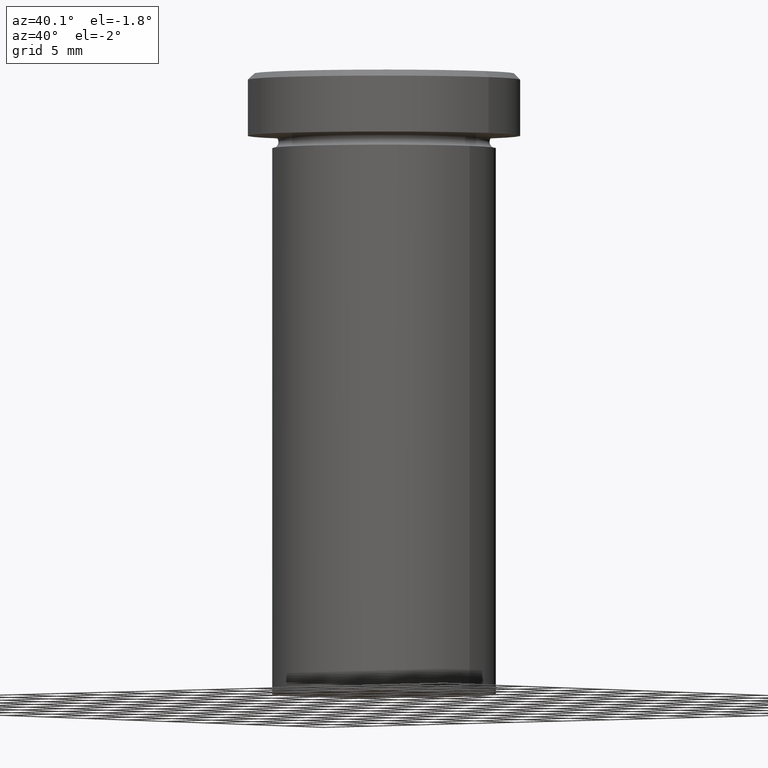
[diagram: clean part render]
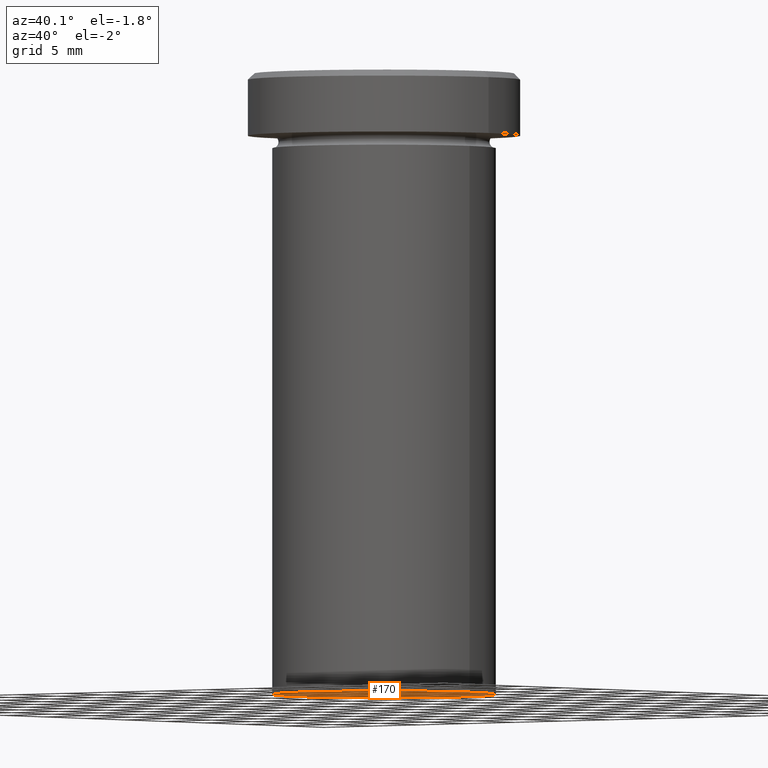
[diagram: same view with one face highlighted and labeled with its STEP entity id]
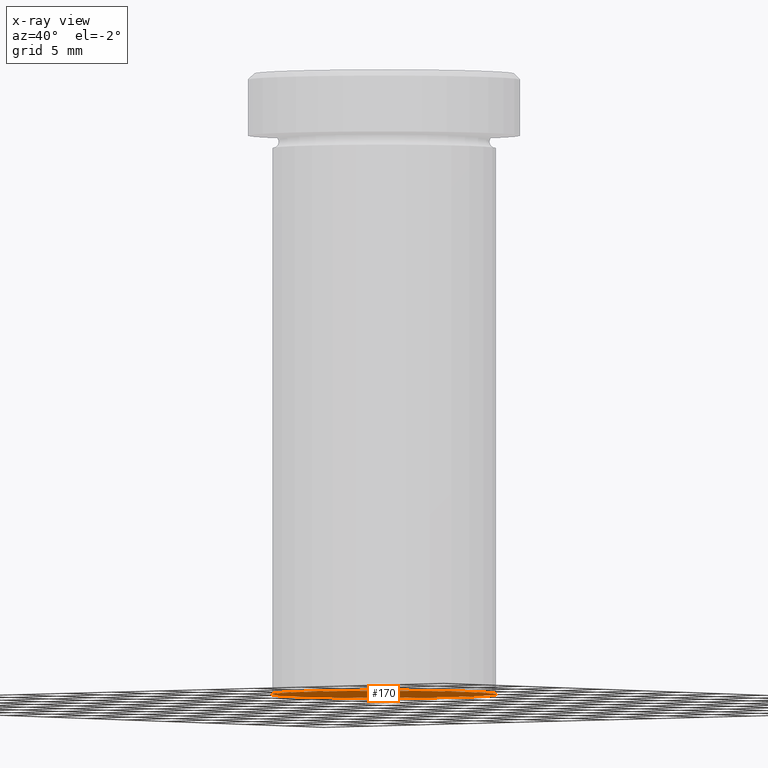
[diagram: x-ray of the same camera — body ghosted, the highlighted face saturated]
A machine part, auxiliary view. The second image highlights one B-rep face of the part: STEP entity #170.
The next image is the same camera in x-ray: the body ghosted, the highlighted face saturated — about 0% of this face is hidden behind the body in this view.
In plain terms, the highlighted planar face has unit normal (0, 0, -1).
Its self-contained STEP definition (entity closure, byte-faithful):
#9 = CIRCLE ( 'NONE', #394, 9.000000000000000000 ) ;
#24 = FACE_OUTER_BOUND ( 'NONE', #191, .T. ) ;
#25 = AXIS2_PLACEMENT_3D ( 'NONE', #89, #97, #408 ) ;
#32 = CARTESIAN_POINT ( 'NONE',  ( 0.000000000000000000, 0.000000000000000000, -50.00000000000000000 ) ) ;
#36 = AXIS2_PLACEMENT_3D ( 'NONE', #32, #188, #302 ) ;
#52 = CARTESIAN_POINT ( 'NONE',  ( -9.000000000000000000, 1.102182119232617714E-15, -50.00000000000000000 ) ) ;
#72 = VERTEX_POINT ( 'NONE', #52 ) ;
#89 = CARTESIAN_POINT ( 'NONE',  ( 0.000000000000000000, 9.000000000000000000, -50.00000000000000000 ) ) ;
#97 = DIRECTION ( 'NONE',  ( 0.000000000000000000, 0.000000000000000000, -1.000000000000000000 ) ) ;
#107 = CIRCLE ( 'NONE', #36, 9.000000000000000000 ) ;
#148 = CARTESIAN_POINT ( 'NONE',  ( 0.000000000000000000, 0.000000000000000000, -50.00000000000000000 ) ) ;
#152 = DIRECTION ( 'NONE',  ( -0.000000000000000000, -0.000000000000000000, 1.000000000000000000 ) ) ;
#170 = ADVANCED_FACE ( 'NONE', ( #24 ), #269, .T. ) ;
#188 = DIRECTION ( 'NONE',  ( -0.000000000000000000, -0.000000000000000000, 1.000000000000000000 ) ) ;
#191 = EDGE_LOOP ( 'NONE', ( #385, #349 ) ) ;
#232 = EDGE_CURVE ( 'NONE', #72, #283, #9, .T. ) ;
#240 = CARTESIAN_POINT ( 'NONE',  ( 9.000000000000000000, 0.000000000000000000, -50.00000000000000000 ) ) ;
#260 = EDGE_CURVE ( 'NONE', #283, #72, #107, .T. ) ;
#269 = PLANE ( 'NONE',  #25 ) ;
#283 = VERTEX_POINT ( 'NONE', #240 ) ;
#302 = DIRECTION ( 'NONE',  ( 1.000000000000000000, 0.000000000000000000, 0.000000000000000000 ) ) ;
#338 = DIRECTION ( 'NONE',  ( 1.000000000000000000, 0.000000000000000000, 0.000000000000000000 ) ) ;
#349 = ORIENTED_EDGE ( 'NONE', *, *, #232, .F. ) ;
#385 = ORIENTED_EDGE ( 'NONE', *, *, #260, .F. ) ;
#394 = AXIS2_PLACEMENT_3D ( 'NONE', #148, #152, #338 ) ;
#408 = DIRECTION ( 'NONE',  ( -1.000000000000000000, 0.000000000000000000, -0.000000000000000000 ) ) ;